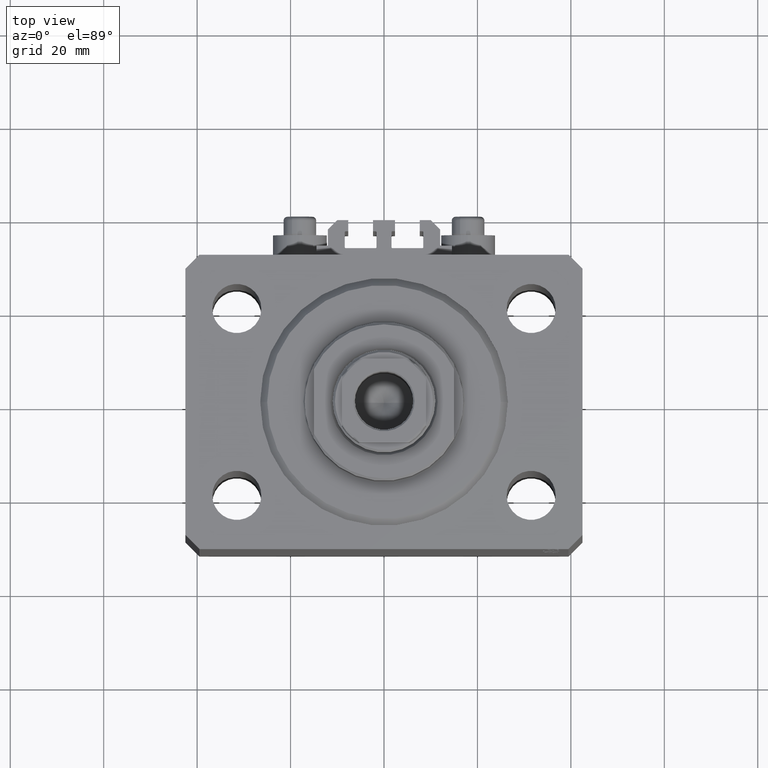
[diagram: clean part render]
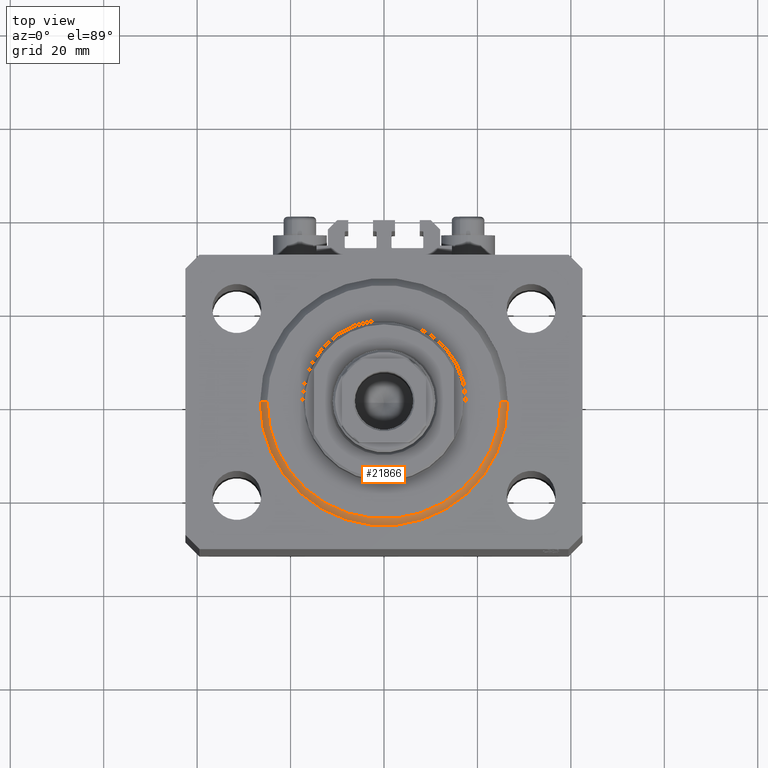
[diagram: same view with one face highlighted and labeled with its STEP entity id]
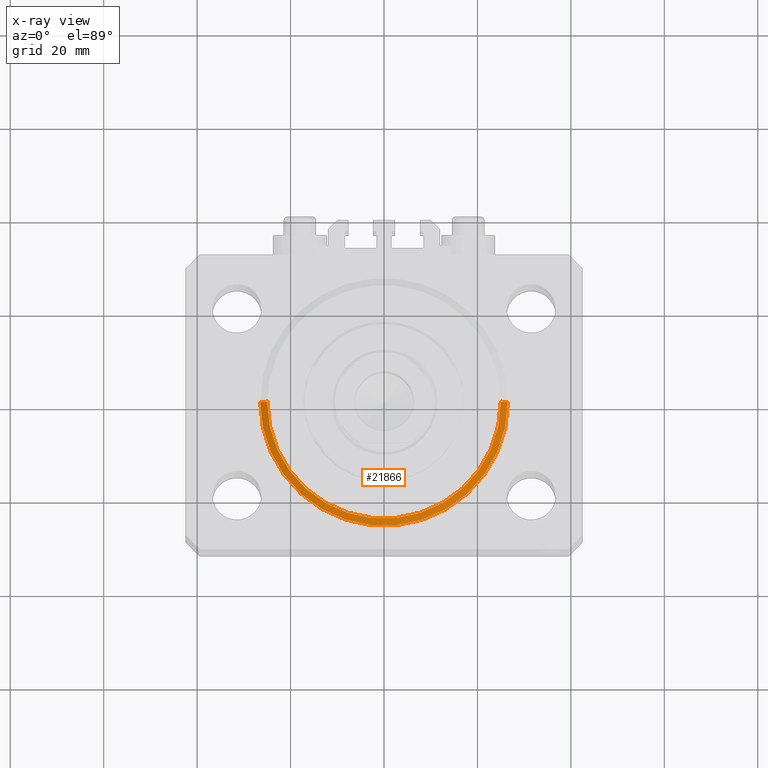
[diagram: x-ray of the same camera — body ghosted, the highlighted face saturated]
A machine part, top view. The second image highlights one B-rep face of the part: STEP entity #21866.
The next image is the same camera in x-ray: the body ghosted, the highlighted face saturated — about 0% of this face is hidden behind the body in this view.
In plain terms, the highlighted conical surface has half-angle 45 deg.
Its self-contained STEP definition (entity closure, byte-faithful):
#153 = VERTEX_POINT ( 'NONE', #26505 ) ;
#1658 = CARTESIAN_POINT ( 'NONE',  ( 26.50000000000000355, 0.000000000000000000, 1.500000000000018652 ) ) ;
#2413 = DIRECTION ( 'NONE',  ( 1.000000000000000000, 0.000000000000000000, 0.000000000000000000 ) ) ;
#6862 = EDGE_CURVE ( 'NONE', #153, #28124, #22616, .T. ) ;
#7604 = ORIENTED_EDGE ( 'NONE', *, *, #6862, .F. ) ;
#8135 = AXIS2_PLACEMENT_3D ( 'NONE', #11041, #15566, #22265 ) ;
#11041 = CARTESIAN_POINT ( 'NONE',  ( 0.000000000000000000, 0.000000000000000000, 0.000000000000000000 ) ) ;
#11593 = AXIS2_PLACEMENT_3D ( 'NONE', #27722, #42528, #2413 ) ;
#13379 = VERTEX_POINT ( 'NONE', #15585 ) ;
#15566 = DIRECTION ( 'NONE',  ( -0.000000000000000000, -0.000000000000000000, -1.000000000000000000 ) ) ;
#15585 = CARTESIAN_POINT ( 'NONE',  ( -26.50000000000000355, 0.000000000000000000, 1.500000000000018652 ) ) ;
#15970 = LINE ( 'NONE', #1658, #28237 ) ;
#16483 = VERTEX_POINT ( 'NONE', #40984 ) ;
#16940 = EDGE_CURVE ( 'NONE', #153, #16483, #15970, .T. ) ;
#16941 = CARTESIAN_POINT ( 'NONE',  ( -26.50000000000000355, 3.245314017740486554E-15, 1.500000000000018652 ) ) ;
#17062 = ORIENTED_EDGE ( 'NONE', *, *, #36527, .F. ) ;
#20531 = LINE ( 'NONE', #16941, #20778 ) ;
#20778 = VECTOR ( 'NONE', #46071, 1000.000000000000000 ) ;
#21866 = ADVANCED_FACE ( 'NONE', ( #45150 ), #32217, .T. ) ;
#22265 = DIRECTION ( 'NONE',  ( 1.000000000000000000, 0.000000000000000000, 0.000000000000000000 ) ) ;
#22616 = CIRCLE ( 'NONE', #8135, 24.99999999999998224 ) ;
#25058 = CARTESIAN_POINT ( 'NONE',  ( 0.000000000000000000, 0.000000000000000000, 1.500000000000018652 ) ) ;
#26187 = AXIS2_PLACEMENT_3D ( 'NONE', #25058, #39613, #39838 ) ;
#26505 = CARTESIAN_POINT ( 'NONE',  ( 24.99999999999998224, 0.000000000000000000, 0.000000000000000000 ) ) ;
#27545 = ORIENTED_EDGE ( 'NONE', *, *, #33982, .F. ) ;
#27722 = CARTESIAN_POINT ( 'NONE',  ( 0.000000000000000000, 0.000000000000000000, 1.500000000000018652 ) ) ;
#28124 = VERTEX_POINT ( 'NONE', #29081 ) ;
#28237 = VECTOR ( 'NONE', #37708, 1000.000000000000000 ) ;
#29081 = CARTESIAN_POINT ( 'NONE',  ( -24.99999999999998224, 3.153465507804433615E-15, 0.000000000000000000 ) ) ;
#32092 = EDGE_LOOP ( 'NONE', ( #27545, #7604, #32418, #17062 ) ) ;
#32217 = CONICAL_SURFACE ( 'NONE', #11593, 26.50000000000000355, 0.7853981633974495002 ) ;
#32418 = ORIENTED_EDGE ( 'NONE', *, *, #16940, .T. ) ;
#33982 = EDGE_CURVE ( 'NONE', #28124, #13379, #20531, .T. ) ;
#36527 = EDGE_CURVE ( 'NONE', #13379, #16483, #46783, .T. ) ;
#37708 = DIRECTION ( 'NONE',  ( 0.7071067811865483499, 0.000000000000000000, 0.7071067811865466846 ) ) ;
#39613 = DIRECTION ( 'NONE',  ( -0.000000000000000000, -0.000000000000000000, 1.000000000000000000 ) ) ;
#39838 = DIRECTION ( 'NONE',  ( 1.000000000000000000, 0.000000000000000000, 0.000000000000000000 ) ) ;
#40984 = CARTESIAN_POINT ( 'NONE',  ( 26.50000000000000355, 3.245314017740486554E-15, 1.500000000000018652 ) ) ;
#42528 = DIRECTION ( 'NONE',  ( -0.000000000000000000, -0.000000000000000000, 1.000000000000000000 ) ) ;
#45150 = FACE_OUTER_BOUND ( 'NONE', #32092, .T. ) ;
#46071 = DIRECTION ( 'NONE',  ( -0.7071067811865483499, 8.659560562354942719E-17, 0.7071067811865466846 ) ) ;
#46783 = CIRCLE ( 'NONE', #26187, 26.50000000000000355 ) ;